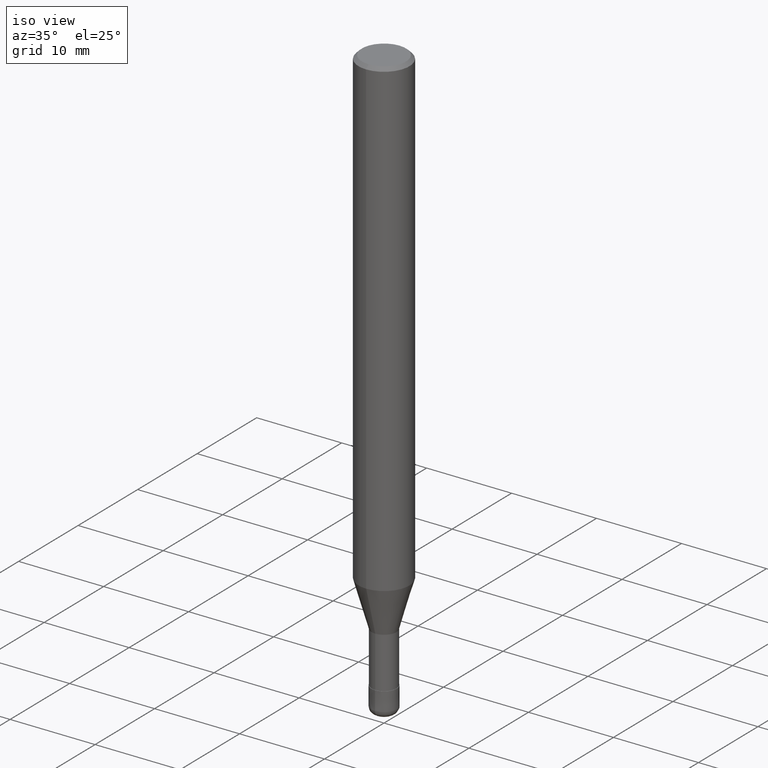
[diagram: clean part render]
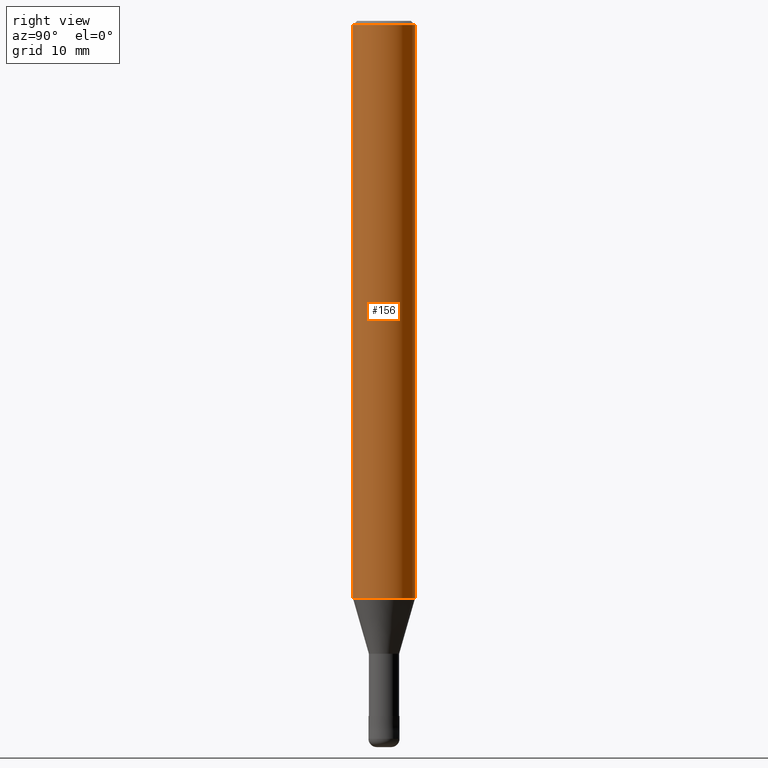
[diagram: tour spotlight — one face highlighted and labeled with its STEP entity id]
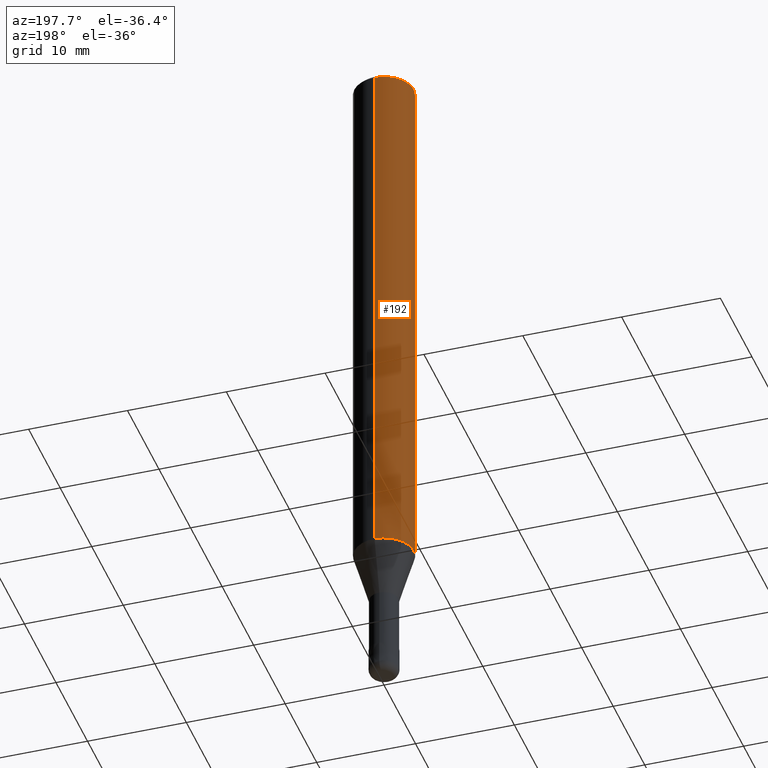
[diagram: tour spotlight — one face highlighted and labeled with its STEP entity id]
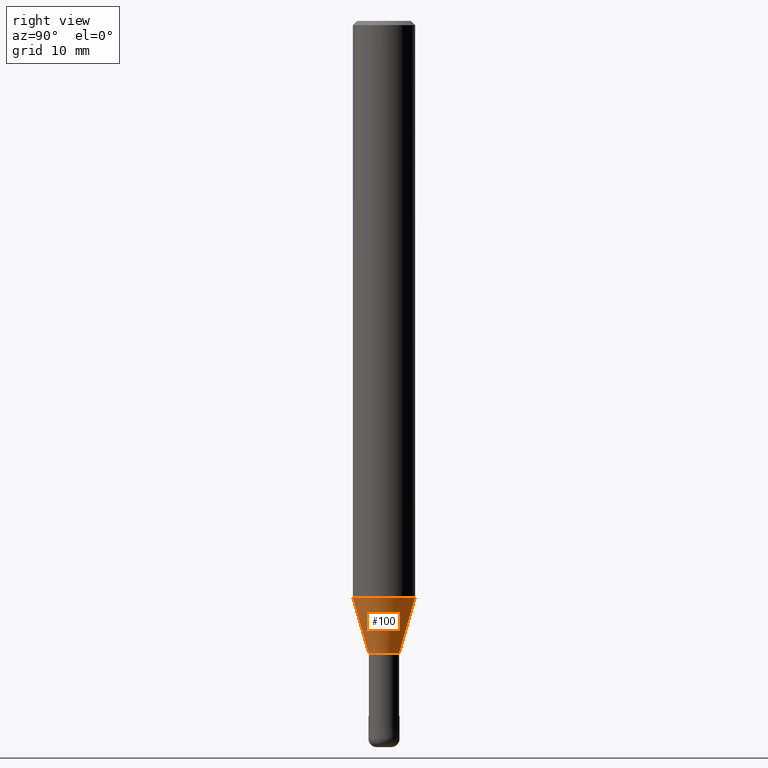
[diagram: tour spotlight — one face highlighted and labeled with its STEP entity id]
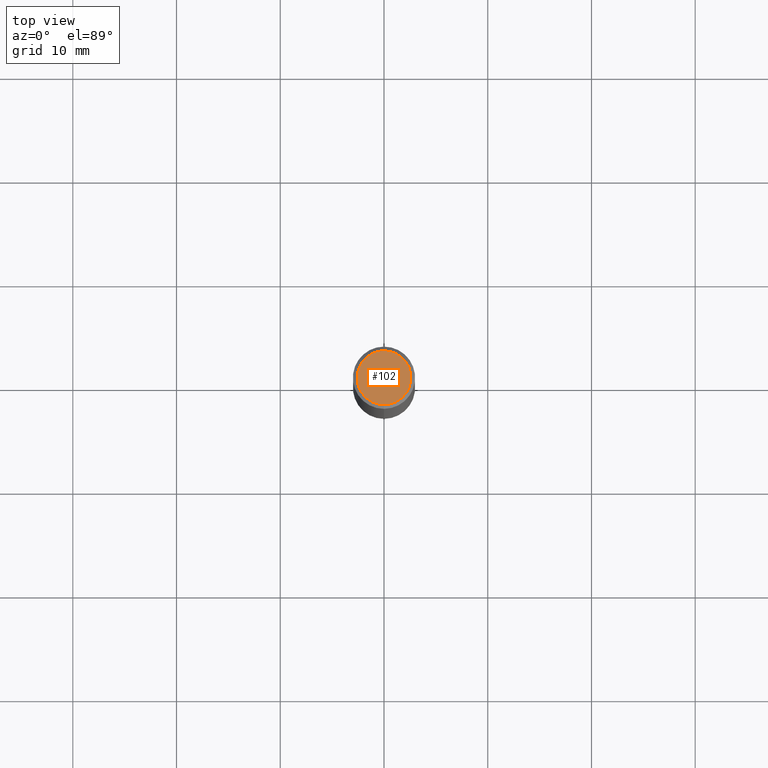
[diagram: tour spotlight — one face highlighted and labeled with its STEP entity id]
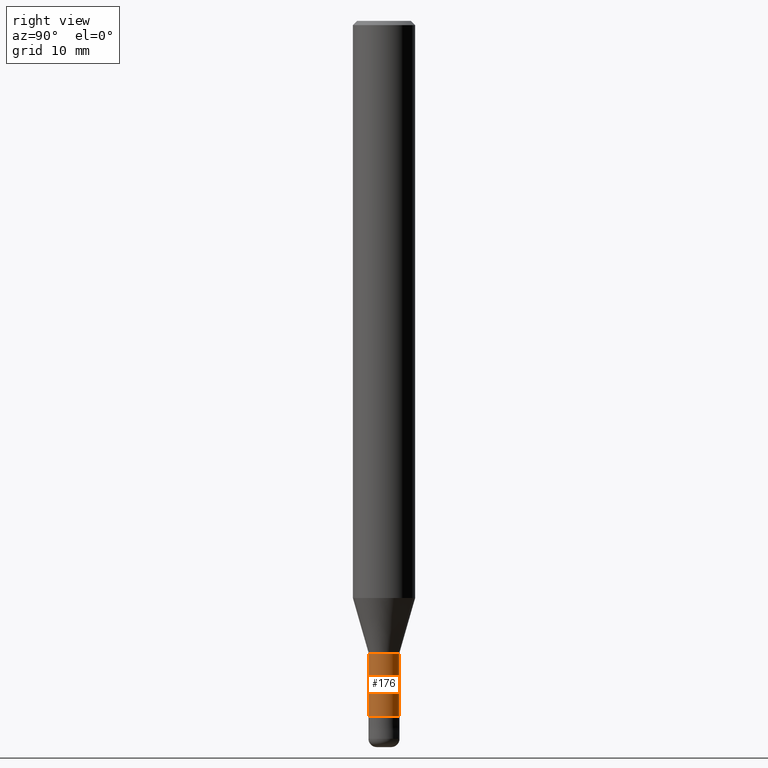
[diagram: tour spotlight — one face highlighted and labeled with its STEP entity id]
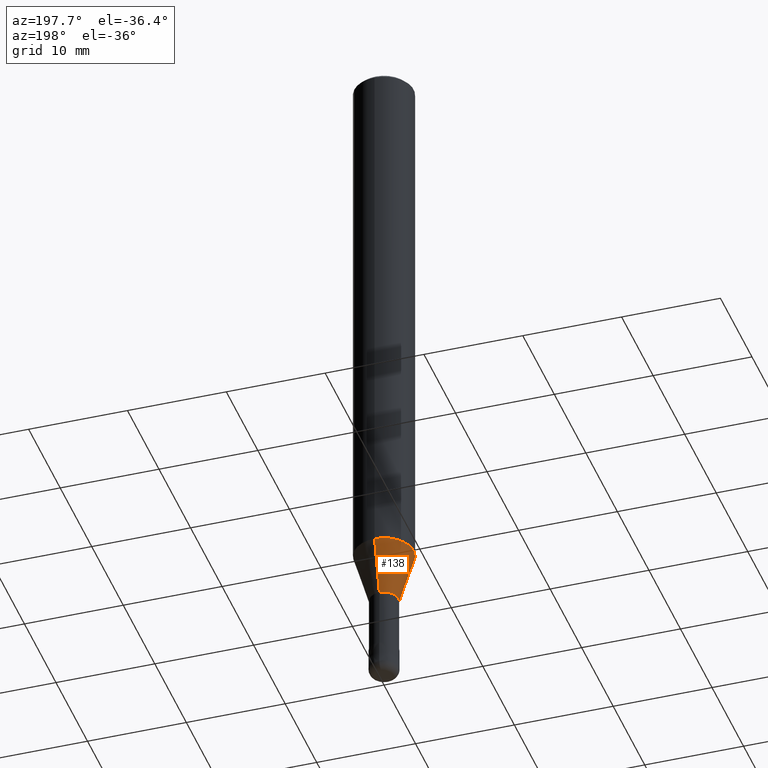
[diagram: tour spotlight — one face highlighted and labeled with its STEP entity id]
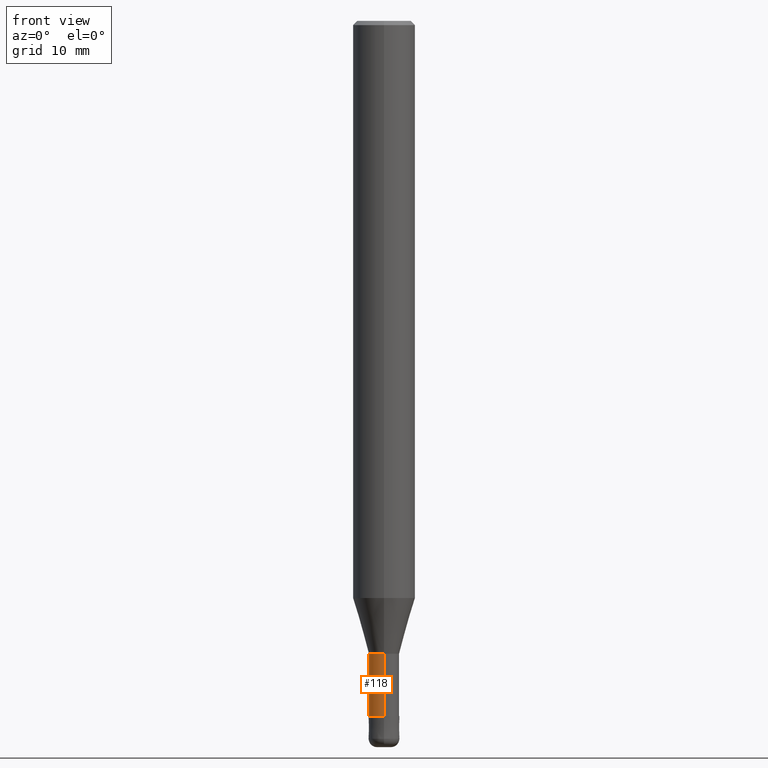
[diagram: tour spotlight — one face highlighted and labeled with its STEP entity id]
A machine part: a face-by-face anatomy tour. The part has 17 B-rep faces; the first image is the clean iso view, then the 7 largest visible faces are spotlighted one at a time (largest first), each with its STEP entity span.

Face 1 — right view, entity #156. In plain terms, the highlighted cylindrical surface (edge-blend (fillet) strip) has radius 3 mm, axis along (-0, -0, 1).
Definition (entity closure, byte-faithful):
#104=VERTEX_POINT('',#259);
#148=EDGE_CURVE('',#104,#154,#309,.T.);
#154=VERTEX_POINT('',#315);
#156=ADVANCED_FACE('',(#317),#318,.T.);
#160=EDGE_CURVE('',#104,#206,#322,.T.);
#180=EDGE_CURVE('',#184,#206,#344,.T.);
#184=VERTEX_POINT('',#348);
#206=VERTEX_POINT('',#372);
#214=EDGE_CURVE('',#154,#184,#384,.T.);
#259=CARTESIAN_POINT('',(0.0,3.0,-0.399999999999999));
#309=LINE('',#486,#487);
#315=CARTESIAN_POINT('',(0.0,3.0,-55.629));
#317=FACE_OUTER_BOUND('',#496,.T.);
#318=CYLINDRICAL_SURFACE('',#497,3.0);
#322=CIRCLE('',#503,3.0);
#344=LINE('',#532,#533);
#348=CARTESIAN_POINT('',(3.67381906146713E-016,-3.0,-55.629));
#372=CARTESIAN_POINT('',(3.67381906146713E-016,-3.0,-0.399999999999999));
#384=CIRCLE('',#578,3.0);
#486=CARTESIAN_POINT('',(-3.67381906146713E-016,3.0,-28.0145));
#487=VECTOR('',#690,1.0);
#496=EDGE_LOOP('',(#695,#696,#697,#698));
#497=AXIS2_PLACEMENT_3D('',#699,#700,#701);
#503=AXIS2_PLACEMENT_3D('',#705,#706,#707);
#532=CARTESIAN_POINT('',(3.67381906146713E-016,-3.0,-28.0145));
#533=VECTOR('',#731,1.0);
#578=AXIS2_PLACEMENT_3D('',#781,#782,#783);
#690=DIRECTION('',(0.0,0.0,-1.0));
#695=ORIENTED_EDGE('',*,*,#148,.F.);
#696=ORIENTED_EDGE('',*,*,#160,.T.);
#697=ORIENTED_EDGE('',*,*,#180,.F.);
#698=ORIENTED_EDGE('',*,*,#214,.F.);
#699=CARTESIAN_POINT('',(0.0,0.0,-28.0145));
#700=DIRECTION('',(-0.0,-0.0,1.0));
#701=DIRECTION('',(0.0,1.0,0.0));
#705=CARTESIAN_POINT('',(0.0,0.0,-0.399999999999999));
#706=DIRECTION('',(0.0,0.0,-1.0));
#707=DIRECTION('',(0.0,1.0,0.0));
#731=DIRECTION('',(-0.0,-0.0,1.0));
#781=CARTESIAN_POINT('',(0.0,0.0,-55.629));
#782=DIRECTION('',(0.0,0.0,-1.0));
#783=DIRECTION('',(0.0,1.0,0.0));

Face 2 — auxiliary view, entity #192. In plain terms, the highlighted cylindrical surface (edge-blend (fillet) strip) has radius 3 mm, axis along (-0, -0, 1).
Definition (entity closure, byte-faithful):
#104=VERTEX_POINT('',#259);
#136=EDGE_CURVE('',#206,#104,#296,.T.);
#148=EDGE_CURVE('',#104,#154,#309,.T.);
#154=VERTEX_POINT('',#315);
#180=EDGE_CURVE('',#184,#206,#344,.T.);
#184=VERTEX_POINT('',#348);
#192=ADVANCED_FACE('',(#357),#358,.T.);
#206=VERTEX_POINT('',#372);
#220=EDGE_CURVE('',#184,#154,#390,.T.);
#259=CARTESIAN_POINT('',(0.0,3.0,-0.399999999999999));
#296=CIRCLE('',#469,3.0);
#309=LINE('',#486,#487);
#315=CARTESIAN_POINT('',(0.0,3.0,-55.629));
#344=LINE('',#532,#533);
#348=CARTESIAN_POINT('',(3.67381906146713E-016,-3.0,-55.629));
#357=FACE_OUTER_BOUND('',#548,.T.);
#358=CYLINDRICAL_SURFACE('',#549,3.0);
#372=CARTESIAN_POINT('',(3.67381906146713E-016,-3.0,-0.399999999999999));
#390=CIRCLE('',#586,3.0);
#469=AXIS2_PLACEMENT_3D('',#670,#671,#672);
#486=CARTESIAN_POINT('',(-3.67381906146713E-016,3.0,-28.0145));
#487=VECTOR('',#690,1.0);
#532=CARTESIAN_POINT('',(3.67381906146713E-016,-3.0,-28.0145));
#533=VECTOR('',#731,1.0);
#548=EDGE_LOOP('',(#746,#747,#748,#749));
#549=AXIS2_PLACEMENT_3D('',#750,#751,#752);
#586=AXIS2_PLACEMENT_3D('',#787,#788,#789);
#670=CARTESIAN_POINT('',(0.0,0.0,-0.399999999999999));
#671=DIRECTION('',(0.0,0.0,-1.0));
#672=DIRECTION('',(0.0,1.0,0.0));
#690=DIRECTION('',(0.0,0.0,-1.0));
#731=DIRECTION('',(-0.0,-0.0,1.0));
#746=ORIENTED_EDGE('',*,*,#148,.T.);
#747=ORIENTED_EDGE('',*,*,#220,.F.);
#748=ORIENTED_EDGE('',*,*,#180,.T.);
#749=ORIENTED_EDGE('',*,*,#136,.T.);
#750=CARTESIAN_POINT('',(0.0,0.0,-28.0145));
#751=DIRECTION('',(-0.0,-0.0,1.0));
#752=DIRECTION('',(0.0,1.0,0.0));
#787=CARTESIAN_POINT('',(0.0,0.0,-55.629));
#788=DIRECTION('',(0.0,0.0,-1.0));
#789=DIRECTION('',(0.0,1.0,0.0));

Face 3 — right view, entity #100. In plain terms, the highlighted conical surface has half-angle 15.999 deg.
Definition (entity closure, byte-faithful):
#100=ADVANCED_FACE('',(#253),#254,.T.);
#112=VERTEX_POINT('',#268);
#120=EDGE_CURVE('',#112,#170,#278,.T.);
#158=EDGE_CURVE('',#196,#112,#320,.T.);
#162=VERTEX_POINT('',#324);
#170=VERTEX_POINT('',#332);
#182=EDGE_CURVE('',#162,#170,#346,.T.);
#186=EDGE_CURVE('',#162,#196,#350,.T.);
#196=VERTEX_POINT('',#362);
#253=FACE_OUTER_BOUND('',#416,.T.);
#254=CONICAL_SURFACE('',#417,2.22995,0.279233847587005);
#268=CARTESIAN_POINT('',(1.78786404626298E-016,-1.45995,-61.0));
#278=LINE('',#446,#447);
#320=CIRCLE('',#500,1.45995);
#324=CARTESIAN_POINT('',(0.0,2.99995,-55.629));
#332=CARTESIAN_POINT('',(3.67375783114944E-016,-2.99995,-55.629));
#346=CIRCLE('',#536,2.99995);
#350=LINE('',#541,#542);
#362=CARTESIAN_POINT('',(0.0,1.45995,-61.0));
#416=EDGE_LOOP('',(#607,#608,#609,#610));
#417=AXIS2_PLACEMENT_3D('',#611,#612,#613);
#446=CARTESIAN_POINT('',(2.73081093870621E-016,-2.22995,-58.3145));
#447=VECTOR('',#646,1.0);
#500=AXIS2_PLACEMENT_3D('',#702,#703,#704);
#536=AXIS2_PLACEMENT_3D('',#732,#733,#734);
#541=CARTESIAN_POINT('',(-2.73081093870621E-016,2.22995,-58.3145));
#542=VECTOR('',#735,1.0);
#607=ORIENTED_EDGE('',*,*,#186,.F.);
#608=ORIENTED_EDGE('',*,*,#182,.T.);
#609=ORIENTED_EDGE('',*,*,#120,.F.);
#610=ORIENTED_EDGE('',*,*,#158,.F.);
#611=CARTESIAN_POINT('',(0.0,0.0,-58.3145));
#612=DIRECTION('',(-0.0,-0.0,1.0));
#613=DIRECTION('',(0.0,1.0,0.0));
#646=DIRECTION('',(3.37525087950305E-017,-0.275619252584134,0.961266886772328));
#702=CARTESIAN_POINT('',(0.0,0.0,-61.0));
#703=DIRECTION('',(0.0,0.0,-1.0));
#704=DIRECTION('',(0.0,1.0,0.0));
#732=CARTESIAN_POINT('',(0.0,0.0,-55.629));
#733=DIRECTION('',(0.0,0.0,-1.0));
#734=DIRECTION('',(0.0,1.0,0.0));
#735=DIRECTION('',(3.37525087950305E-017,-0.275619252584134,-0.961266886772328));

Face 4 — top view, entity #102. In plain terms, the highlighted planar face has unit normal (-0, 0, 1).
Definition (entity closure, byte-faithful):
#102=ADVANCED_FACE('',(#256),#257,.T.);
#110=VERTEX_POINT('',#266);
#146=EDGE_CURVE('',#110,#216,#307,.T.);
#216=VERTEX_POINT('',#386);
#222=EDGE_CURVE('',#216,#110,#392,.T.);
#256=FACE_OUTER_BOUND('',#419,.T.);
#257=PLANE('',#420);
#266=CARTESIAN_POINT('',(3.18397651993818E-016,-2.6,0.0));
#307=CIRCLE('',#483,2.6);
#386=CARTESIAN_POINT('',(0.0,2.6,0.0));
#392=CIRCLE('',#589,2.6);
#419=EDGE_LOOP('',(#615,#616));
#420=AXIS2_PLACEMENT_3D('',#617,#618,#619);
#483=AXIS2_PLACEMENT_3D('',#687,#688,#689);
#589=AXIS2_PLACEMENT_3D('',#790,#791,#792);
#615=ORIENTED_EDGE('',*,*,#222,.F.);
#616=ORIENTED_EDGE('',*,*,#146,.F.);
#617=CARTESIAN_POINT('',(0.0,1.3,0.0));
#618=DIRECTION('',(-0.0,0.0,1.0));
#619=DIRECTION('',(0.0,-1.0,0.0));
#687=CARTESIAN_POINT('',(0.0,0.0,0.0));
#688=DIRECTION('',(0.0,0.0,-1.0));
#689=DIRECTION('',(0.0,1.0,0.0));
#790=CARTESIAN_POINT('',(0.0,0.0,0.0));
#791=DIRECTION('',(0.0,0.0,-1.0));
#792=DIRECTION('',(0.0,1.0,0.0));

Face 5 — right view, entity #176. In plain terms, the highlighted cylindrical surface (edge-blend (fillet) strip) has radius 1.46 mm, axis along (-0, -0, 1).
Definition (entity closure, byte-faithful):
#112=VERTEX_POINT('',#268);
#114=EDGE_CURVE('',#152,#112,#270,.T.);
#130=EDGE_CURVE('',#194,#152,#289,.T.);
#152=VERTEX_POINT('',#313);
#158=EDGE_CURVE('',#196,#112,#320,.T.);
#168=EDGE_CURVE('',#196,#194,#330,.T.);
#176=ADVANCED_FACE('',(#339),#340,.T.);
#194=VERTEX_POINT('',#360);
#196=VERTEX_POINT('',#362);
#268=CARTESIAN_POINT('',(1.78786404626298E-016,-1.45995,-61.0));
#270=LINE('',#436,#437);
#289=CIRCLE('',#461,1.45995);
#313=CARTESIAN_POINT('',(1.78786404626298E-016,-1.45995,-67.0));
#320=CIRCLE('',#500,1.45995);
#330=LINE('',#515,#516);
#339=FACE_OUTER_BOUND('',#524,.T.);
#340=CYLINDRICAL_SURFACE('',#525,1.45995);
#360=CARTESIAN_POINT('',(0.0,1.45995,-67.0));
#362=CARTESIAN_POINT('',(0.0,1.45995,-61.0));
#436=CARTESIAN_POINT('',(1.78786404626298E-016,-1.45995,-64.0));
#437=VECTOR('',#629,1.0);
#461=AXIS2_PLACEMENT_3D('',#659,#660,#661);
#500=AXIS2_PLACEMENT_3D('',#702,#703,#704);
#515=CARTESIAN_POINT('',(-1.78786404626298E-016,1.45995,-64.0));
#516=VECTOR('',#712,1.0);
#524=EDGE_LOOP('',(#723,#724,#725,#726));
#525=AXIS2_PLACEMENT_3D('',#727,#728,#729);
#629=DIRECTION('',(-0.0,-0.0,1.0));
#659=CARTESIAN_POINT('',(0.0,0.0,-67.0));
#660=DIRECTION('',(0.0,0.0,-1.0));
#661=DIRECTION('',(0.0,1.0,0.0));
#702=CARTESIAN_POINT('',(0.0,0.0,-61.0));
#703=DIRECTION('',(0.0,0.0,-1.0));
#704=DIRECTION('',(0.0,1.0,0.0));
#712=DIRECTION('',(0.0,0.0,-1.0));
#723=ORIENTED_EDGE('',*,*,#168,.F.);
#724=ORIENTED_EDGE('',*,*,#158,.T.);
#725=ORIENTED_EDGE('',*,*,#114,.F.);
#726=ORIENTED_EDGE('',*,*,#130,.F.);
#727=CARTESIAN_POINT('',(0.0,0.0,-64.0));
#728=DIRECTION('',(-0.0,-0.0,1.0));
#729=DIRECTION('',(0.0,1.0,0.0));

Face 6 — auxiliary view, entity #138. In plain terms, the highlighted conical surface has half-angle 15.999 deg.
Definition (entity closure, byte-faithful):
#112=VERTEX_POINT('',#268);
#120=EDGE_CURVE('',#112,#170,#278,.T.);
#128=EDGE_CURVE('',#112,#196,#287,.T.);
#138=ADVANCED_FACE('',(#298),#299,.T.);
#162=VERTEX_POINT('',#324);
#170=VERTEX_POINT('',#332);
#186=EDGE_CURVE('',#162,#196,#350,.T.);
#196=VERTEX_POINT('',#362);
#232=EDGE_CURVE('',#170,#162,#403,.T.);
#268=CARTESIAN_POINT('',(1.78786404626298E-016,-1.45995,-61.0));
#278=LINE('',#446,#447);
#287=CIRCLE('',#458,1.45995);
#298=FACE_OUTER_BOUND('',#471,.T.);
#299=CONICAL_SURFACE('',#472,2.22995,0.279233847587005);
#324=CARTESIAN_POINT('',(0.0,2.99995,-55.629));
#332=CARTESIAN_POINT('',(3.67375783114944E-016,-2.99995,-55.629));
#350=LINE('',#541,#542);
#362=CARTESIAN_POINT('',(0.0,1.45995,-61.0));
#403=CIRCLE('',#604,2.99995);
#446=CARTESIAN_POINT('',(2.73081093870621E-016,-2.22995,-58.3145));
#447=VECTOR('',#646,1.0);
#458=AXIS2_PLACEMENT_3D('',#656,#657,#658);
#471=EDGE_LOOP('',(#674,#675,#676,#677));
#472=AXIS2_PLACEMENT_3D('',#678,#679,#680);
#541=CARTESIAN_POINT('',(-2.73081093870621E-016,2.22995,-58.3145));
#542=VECTOR('',#735,1.0);
#604=AXIS2_PLACEMENT_3D('',#803,#804,#805);
#646=DIRECTION('',(3.37525087950305E-017,-0.275619252584134,0.961266886772328));
#656=CARTESIAN_POINT('',(0.0,0.0,-61.0));
#657=DIRECTION('',(0.0,0.0,-1.0));
#658=DIRECTION('',(0.0,1.0,0.0));
#674=ORIENTED_EDGE('',*,*,#186,.T.);
#675=ORIENTED_EDGE('',*,*,#128,.F.);
#676=ORIENTED_EDGE('',*,*,#120,.T.);
#677=ORIENTED_EDGE('',*,*,#232,.T.);
#678=CARTESIAN_POINT('',(0.0,0.0,-58.3145));
#679=DIRECTION('',(-0.0,-0.0,1.0));
#680=DIRECTION('',(0.0,1.0,0.0));
#735=DIRECTION('',(3.37525087950305E-017,-0.275619252584134,-0.961266886772328));
#803=CARTESIAN_POINT('',(0.0,0.0,-55.629));
#804=DIRECTION('',(0.0,0.0,-1.0));
#805=DIRECTION('',(0.0,1.0,0.0));

Face 7 — front view, entity #118. In plain terms, the highlighted cylindrical surface (edge-blend (fillet) strip) has radius 1.46 mm, axis along (-0, -0, 1).
Definition (entity closure, byte-faithful):
#112=VERTEX_POINT('',#268);
#114=EDGE_CURVE('',#152,#112,#270,.T.);
#118=ADVANCED_FACE('',(#275),#276,.T.);
#128=EDGE_CURVE('',#112,#196,#287,.T.);
#152=VERTEX_POINT('',#313);
#168=EDGE_CURVE('',#196,#194,#330,.T.);
#194=VERTEX_POINT('',#360);
#196=VERTEX_POINT('',#362);
#202=EDGE_CURVE('',#152,#194,#368,.T.);
#268=CARTESIAN_POINT('',(1.78786404626298E-016,-1.45995,-61.0));
#270=LINE('',#436,#437);
#275=FACE_OUTER_BOUND('',#442,.T.);
#276=CYLINDRICAL_SURFACE('',#443,1.45995);
#287=CIRCLE('',#458,1.45995);
#313=CARTESIAN_POINT('',(1.78786404626298E-016,-1.45995,-67.0));
#330=LINE('',#515,#516);
#360=CARTESIAN_POINT('',(0.0,1.45995,-67.0));
#362=CARTESIAN_POINT('',(0.0,1.45995,-61.0));
#368=CIRCLE('',#561,1.45995);
#436=CARTESIAN_POINT('',(1.78786404626298E-016,-1.45995,-64.0));
#437=VECTOR('',#629,1.0);
#442=EDGE_LOOP('',(#639,#640,#641,#642));
#443=AXIS2_PLACEMENT_3D('',#643,#644,#645);
#458=AXIS2_PLACEMENT_3D('',#656,#657,#658);
#515=CARTESIAN_POINT('',(-1.78786404626298E-016,1.45995,-64.0));
#516=VECTOR('',#712,1.0);
#561=AXIS2_PLACEMENT_3D('',#756,#757,#758);
#629=DIRECTION('',(-0.0,-0.0,1.0));
#639=ORIENTED_EDGE('',*,*,#168,.T.);
#640=ORIENTED_EDGE('',*,*,#202,.F.);
#641=ORIENTED_EDGE('',*,*,#114,.T.);
#642=ORIENTED_EDGE('',*,*,#128,.T.);
#643=CARTESIAN_POINT('',(0.0,0.0,-64.0));
#644=DIRECTION('',(-0.0,-0.0,1.0));
#645=DIRECTION('',(0.0,1.0,0.0));
#656=CARTESIAN_POINT('',(0.0,0.0,-61.0));
#657=DIRECTION('',(0.0,0.0,-1.0));
#658=DIRECTION('',(0.0,1.0,0.0));
#712=DIRECTION('',(0.0,0.0,-1.0));
#756=CARTESIAN_POINT('',(0.0,0.0,-67.0));
#757=DIRECTION('',(0.0,0.0,-1.0));
#758=DIRECTION('',(0.0,1.0,0.0));